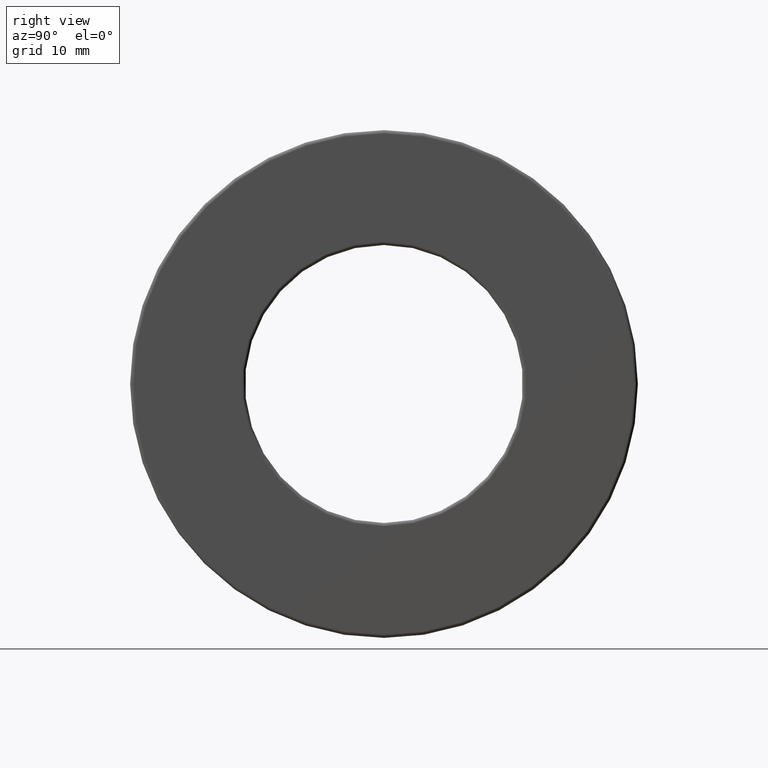
[diagram: clean part render]
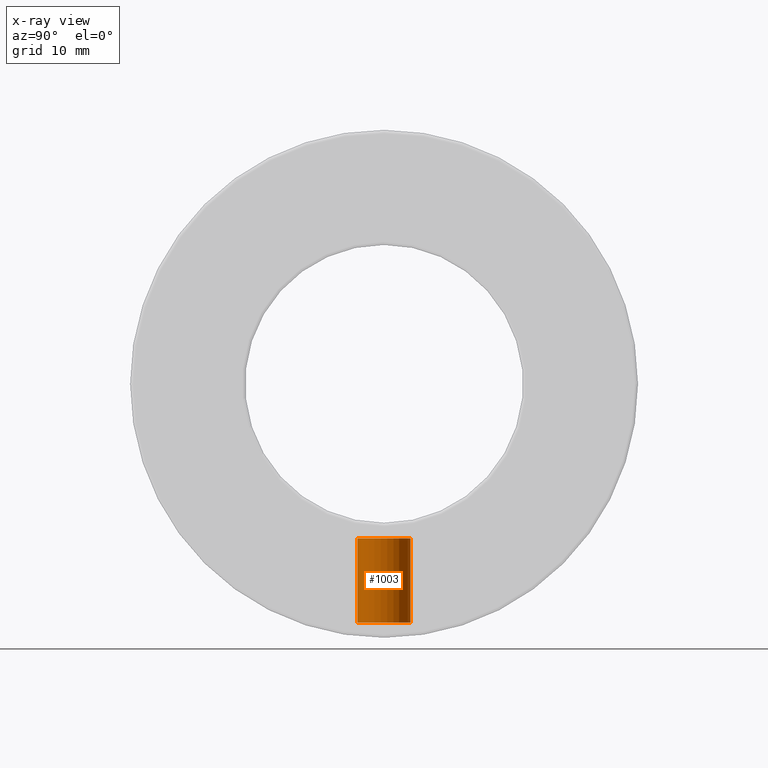
[diagram: x-ray — body ghosted, one internal face saturated and labeled with its STEP entity id]
A machine part, right view, then the same camera in x-ray: the body is ghosted and one INTERNAL B-rep face — a face not visible from any outside direction — is saturated and labeled: STEP entity #1003.
In plain terms, the highlighted cylindrical surface (bore or boss wall) has radius 3.9624 mm, axis along (0, -0, -1).
Its self-contained STEP definition (entity closure, byte-faithful):
#16 = DIRECTION ( 'NONE',  ( 0.0000000000000000000, -3.491481338843133400E-015, -1.000000000000000000 ) ) ;
#152 = VERTEX_POINT ( 'NONE', #185 ) ;
#158 = AXIS2_PLACEMENT_3D ( 'NONE', #1139, #490, #261 ) ;
#185 = CARTESIAN_POINT ( 'NONE',  ( 0.0000000000000000000, 0.1559999999999968400, -0.9025000000000006400 ) ) ;
#256 = CARTESIAN_POINT ( 'NONE',  ( 0.0000000000000000000, -4.868434291849393000E-015, -1.394374999999999700 ) ) ;
#261 = DIRECTION ( 'NONE',  ( 0.0000000000000000000, 1.000000000000000000, -3.502369222646491400E-015 ) ) ;
#372 = EDGE_CURVE ( 'NONE', #152, #152, #1278, .T. ) ;
#469 = AXIS2_PLACEMENT_3D ( 'NONE', #256, #605, #729 ) ;
#484 = VERTEX_POINT ( 'NONE', #918 ) ;
#490 = DIRECTION ( 'NONE',  ( 0.0000000000000000000, -3.491481338843133400E-015, -1.000000000000000000 ) ) ;
#494 = EDGE_CURVE ( 'NONE', #484, #484, #1202, .T. ) ;
#527 = FACE_OUTER_BOUND ( 'NONE', #552, .T. ) ;
#552 = EDGE_LOOP ( 'NONE', ( #1383 ) ) ;
#605 = DIRECTION ( 'NONE',  ( 0.0000000000000000000, -3.491481338843133400E-015, -1.000000000000000000 ) ) ;
#706 = CARTESIAN_POINT ( 'NONE',  ( 0.0000000000000000000, 0.0000000000000000000, 0.0000000000000000000 ) ) ;
#729 = DIRECTION ( 'NONE',  ( 0.0000000000000000000, 1.000000000000000000, -3.502369222646494500E-015 ) ) ;
#764 = FACE_OUTER_BOUND ( 'NONE', #810, .T. ) ;
#810 = EDGE_LOOP ( 'NONE', ( #895 ) ) ;
#825 = AXIS2_PLACEMENT_3D ( 'NONE', #706, #16, #921 ) ;
#895 = ORIENTED_EDGE ( 'NONE', *, *, #494, .F. ) ;
#918 = CARTESIAN_POINT ( 'NONE',  ( 0.0000000000000000000, 0.1559999999999949800, -1.394375000000000400 ) ) ;
#921 = DIRECTION ( 'NONE',  ( 0.0000000000000000000, 1.000000000000000000, -3.491481338843133400E-015 ) ) ;
#1003 = ADVANCED_FACE ( 'NONE', ( #527, #764 ), #1007, .T. ) ;
#1007 = CYLINDRICAL_SURFACE ( 'NONE', #825, 0.1559999999999999200 ) ;
#1139 = CARTESIAN_POINT ( 'NONE',  ( 0.0000000000000000000, -3.151061908305928300E-015, -0.9025000000000001900 ) ) ;
#1202 = CIRCLE ( 'NONE', #469, 0.1559999999999998600 ) ;
#1278 = CIRCLE ( 'NONE', #158, 0.1560000000000000000 ) ;
#1383 = ORIENTED_EDGE ( 'NONE', *, *, #372, .T. ) ;